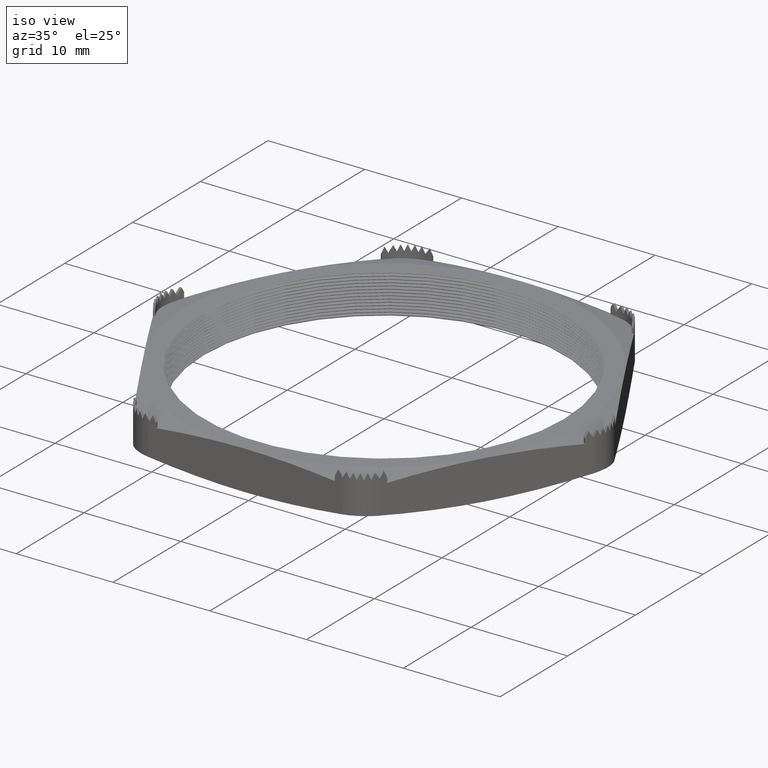
[diagram: clean part render]
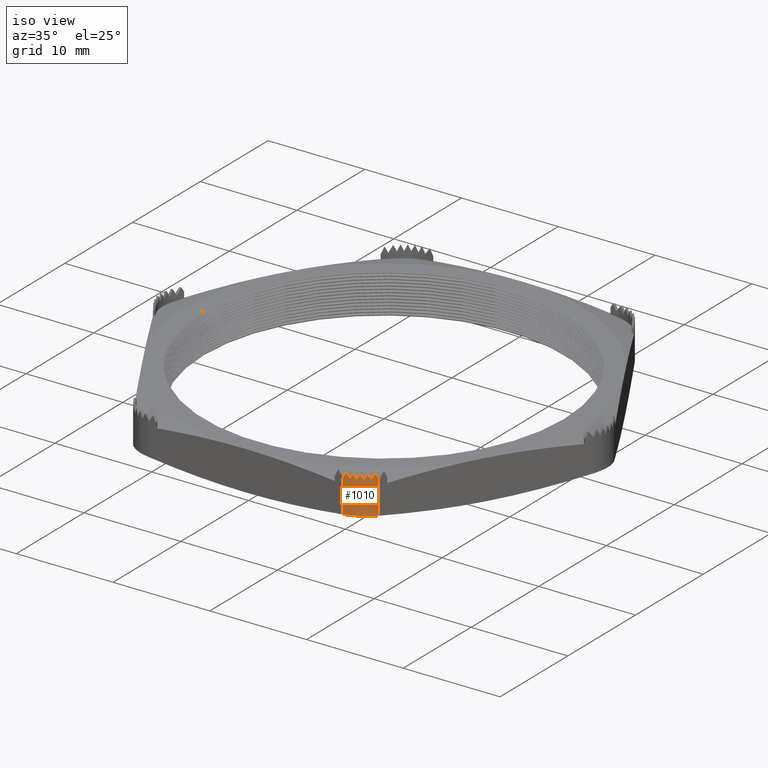
[diagram: same view with one face highlighted and labeled with its STEP entity id]
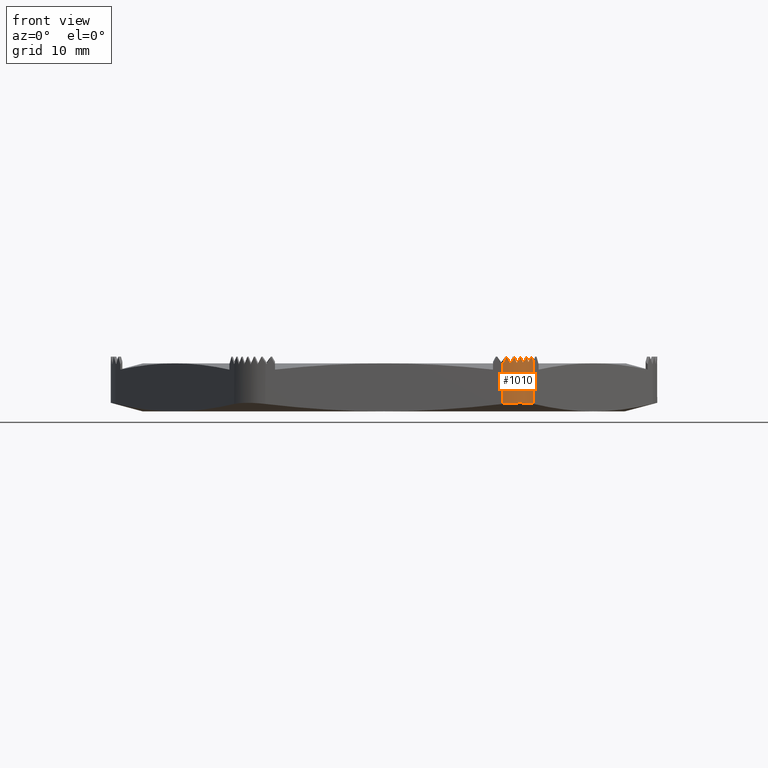
[diagram: same view with one face highlighted and labeled with its STEP entity id]
A machine part, iso view. The second image highlights one B-rep face of the part: STEP entity #1010.
A second angle (front view) of the same face is appended — the face is thin or edge-on in the first view.
In plain terms, the highlighted cylindrical surface (edge-blend (fillet) strip) has radius 3.048 mm, axis along (0, 0, -1).
Its self-contained STEP definition (entity closure, byte-faithful):
#822 = VERTEX_POINT ( 'NONE', #3536 ) ;
#824 = EDGE_CURVE ( 'NONE', #822, #831, #3535, .T. ) ;
#831 = VERTEX_POINT ( 'NONE', #3563 ) ;
#970 = ORIENTED_EDGE ( 'NONE', *, *, #971, .F. ) ;
#971 = EDGE_CURVE ( 'NONE', #972, #997, #3840, .T. ) ;
#972 = VERTEX_POINT ( 'NONE', #3841 ) ;
#973 = ORIENTED_EDGE ( 'NONE', *, *, #974, .F. ) ;
#974 = EDGE_CURVE ( 'NONE', #975, #972, #3835, .T. ) ;
#975 = VERTEX_POINT ( 'NONE', #3854 ) ;
#976 = ORIENTED_EDGE ( 'NONE', *, *, #977, .F. ) ;
#977 = EDGE_CURVE ( 'NONE', #978, #975, #3853, .T. ) ;
#978 = VERTEX_POINT ( 'NONE', #3852 ) ;
#979 = ORIENTED_EDGE ( 'NONE', *, *, #980, .F. ) ;
#980 = EDGE_CURVE ( 'NONE', #981, #978, #3846, .T. ) ;
#981 = VERTEX_POINT ( 'NONE', #3847 ) ;
#982 = ORIENTED_EDGE ( 'NONE', *, *, #983, .F. ) ;
#983 = EDGE_CURVE ( 'NONE', #984, #981, #3865, .T. ) ;
#984 = VERTEX_POINT ( 'NONE', #3866 ) ;
#985 = ORIENTED_EDGE ( 'NONE', *, *, #986, .F. ) ;
#986 = EDGE_CURVE ( 'NONE', #2252, #987, #3859, .T. ) ;
#987 = VERTEX_POINT ( 'NONE', #3860 ) ;
#988 = ORIENTED_EDGE ( 'NONE', *, *, #2309, .F. ) ;
#989 = ORIENTED_EDGE ( 'NONE', *, *, #990, .T. ) ;
#990 = EDGE_CURVE ( 'NONE', #2305, #831, #3887, .T. ) ;
#991 = ORIENTED_EDGE ( 'NONE', *, *, #824, .F. ) ;
#992 = ORIENTED_EDGE ( 'NONE', *, *, #993, .F. ) ;
#993 = EDGE_CURVE ( 'NONE', #994, #822, #3873, .T. ) ;
#994 = VERTEX_POINT ( 'NONE', #3886 ) ;
#995 = ORIENTED_EDGE ( 'NONE', *, *, #996, .F. ) ;
#996 = EDGE_CURVE ( 'NONE', #997, #994, #3867, .T. ) ;
#997 = VERTEX_POINT ( 'NONE', #3868 ) ;
#1010 = ADVANCED_FACE ( 'NONE', ( #3928 ), #3927, .T. ) ;
#1011 = EDGE_LOOP ( 'NONE', ( #985, #988, #989, #991, #992, #995, #970, #973, #976, #979, #982, #1046, #1049 ) ) ;
#1046 = ORIENTED_EDGE ( 'NONE', *, *, #1047, .F. ) ;
#1047 = EDGE_CURVE ( 'NONE', #1048, #984, #3992, .T. ) ;
#1048 = VERTEX_POINT ( 'NONE', #3991 ) ;
#1049 = ORIENTED_EDGE ( 'NONE', *, *, #1050, .F. ) ;
#1050 = EDGE_CURVE ( 'NONE', #987, #1048, #4013, .T. ) ;
#2252 = VERTEX_POINT ( 'NONE', #6351 ) ;
#2305 = VERTEX_POINT ( 'NONE', #6431 ) ;
#2309 = EDGE_CURVE ( 'NONE', #2305, #2252, #6429, .T. ) ;
#3532 = DIRECTION ( 'NONE',  ( 0.0000000000000000000, 0.0000000000000000000, -1.000000000000000000 ) ) ;
#3533 = VECTOR ( 'NONE', #3532, 39.37007874015748100 ) ;
#3534 = CARTESIAN_POINT ( 'NONE',  ( 0.4994079828490262700, -0.7449999999999998800, 0.1600000000000000000 ) ) ;
#3535 = LINE ( 'NONE', #3534, #3533 ) ;
#3536 = CARTESIAN_POINT ( 'NONE',  ( 0.4994079828490262700, -0.7449999999999998800, 0.1629545598920909000 ) ) ;
#3563 = CARTESIAN_POINT ( 'NONE',  ( 0.4994079828490262700, -0.7449999999999998800, 0.02462508695735180300 ) ) ;
#3831 = CARTESIAN_POINT ( 'NONE',  ( 0.4750572979125213300, -0.7748233764908584200, 0.1822000000000000000 ) ) ;
#3832 = CARTESIAN_POINT ( 'NONE',  ( 0.4720262471111105200, -0.7775085113146958900, 0.1738681777471867700 ) ) ;
#3833 = CARTESIAN_POINT ( 'NONE',  ( 0.4688632779317571400, -0.7800369187093568700, 0.1654610054953072300 ) ) ;
#3834 = CARTESIAN_POINT ( 'NONE',  ( 0.4655764854667094300, -0.7824021276376806900, 0.1570000000000000000 ) ) ;
#3835 =( BOUNDED_CURVE ( )  B_SPLINE_CURVE ( 3, ( #3834, #3833, #3832, #3831 ),
 .UNSPECIFIED., .F., .T. ) 
 B_SPLINE_CURVE_WITH_KNOTS ( ( 4, 4 ),
 ( 1.670963747956502900, 1.772154247585274700 ),
 .UNSPECIFIED. ) 
 CURVE ( )  GEOMETRIC_REPRESENTATION_ITEM ( )  RATIONAL_B_SPLINE_CURVE ( ( 1.000000000000000000, 0.9991468889104876400, 0.9991468889104876400, 1.000000000000000000 ) ) 
 REPRESENTATION_ITEM ( '' )  );
#3836 = CARTESIAN_POINT ( 'NONE',  ( 0.4838982010161547700, -0.7661362698511448000, 0.1570000000000000000 ) ) ;
#3837 = CARTESIAN_POINT ( 'NONE',  ( 0.4811022252660656100, -0.7691830126939291900, 0.1652839906436028300 ) ) ;
#3838 = CARTESIAN_POINT ( 'NONE',  ( 0.4781526334871084000, -0.7720812933364228400, 0.1736914702820993000 ) ) ;
#3839 = CARTESIAN_POINT ( 'NONE',  ( 0.4750572979125213300, -0.7748233764908584200, 0.1822000000000000000 ) ) ;
#3840 =( BOUNDED_CURVE ( )  B_SPLINE_CURVE ( 3, ( #3839, #3838, #3837, #3836 ),
 .UNSPECIFIED., .F., .T. ) 
 B_SPLINE_CURVE_WITH_KNOTS ( ( 4, 4 ),
 ( 4.913746901175066700, 5.017081634400135200 ),
 .UNSPECIFIED. ) 
 CURVE ( )  GEOMETRIC_REPRESENTATION_ITEM ( )  RATIONAL_B_SPLINE_CURVE ( ( 1.000000000000000000, 0.9991103590114891500, 0.9991103590114891500, 1.000000000000000000 ) ) 
 REPRESENTATION_ITEM ( '' )  );
#3841 = CARTESIAN_POINT ( 'NONE',  ( 0.4750572979125213300, -0.7748233764908584200, 0.1822000000000000000 ) ) ;
#3842 = CARTESIAN_POINT ( 'NONE',  ( 0.4554849343948992300, -0.7889230484541294200, 0.1822000000000000000 ) ) ;
#3843 = CARTESIAN_POINT ( 'NONE',  ( 0.4520135817143928800, -0.7909272348586720000, 0.1737824171009217100 ) ) ;
#3844 = CARTESIAN_POINT ( 'NONE',  ( 0.4484462467232077100, -0.7927551226115924200, 0.1653753892353865300 ) ) ;
#3845 = CARTESIAN_POINT ( 'NONE',  ( 0.4447918757758835300, -0.7944021276376818100, 0.1570000000000000000 ) ) ;
#3846 =( BOUNDED_CURVE ( )  B_SPLINE_CURVE ( 3, ( #3845, #3844, #3843, #3842 ),
 .UNSPECIFIED., .F., .T. ) 
 B_SPLINE_CURVE_WITH_KNOTS ( ( 4, 4 ),
 ( 1.470628905633383200, 1.570796326794942100 ),
 .UNSPECIFIED. ) 
 CURVE ( )  GEOMETRIC_REPRESENTATION_ITEM ( )  RATIONAL_B_SPLINE_CURVE ( ( 1.000000000000000000, 0.9991640487402216900, 0.9991640487402216900, 1.000000000000000000 ) ) 
 REPRESENTATION_ITEM ( '' )  );
#3847 = CARTESIAN_POINT ( 'NONE',  ( 0.4447918757758835300, -0.7944021276376818100, 0.1570000000000000000 ) ) ;
#3848 = CARTESIAN_POINT ( 'NONE',  ( 0.4655764854667094300, -0.7824021276376806900, 0.1570000000000000000 ) ) ;
#3849 = CARTESIAN_POINT ( 'NONE',  ( 0.4623229518002934800, -0.7847434031998709000, 0.1653753892353864700 ) ) ;
#3850 = CARTESIAN_POINT ( 'NONE',  ( 0.4589562870754053100, -0.7869188620495866100, 0.1737824171009217100 ) ) ;
#3851 = CARTESIAN_POINT ( 'NONE',  ( 0.4554849343948992300, -0.7889230484541294200, 0.1822000000000000000 ) ) ;
#3852 = CARTESIAN_POINT ( 'NONE',  ( 0.4554849343948992300, -0.7889230484541294200, 0.1822000000000000000 ) ) ;
#3853 =( BOUNDED_CURVE ( )  B_SPLINE_CURVE ( 3, ( #3851, #3850, #3849, #3848 ),
 .UNSPECIFIED., .F., .F. ) 
 B_SPLINE_CURVE_WITH_KNOTS ( ( 4, 4 ),
 ( 4.712388980384735900, 4.812556401546295600 ),
 .UNSPECIFIED. ) 
 CURVE ( )  GEOMETRIC_REPRESENTATION_ITEM ( )  RATIONAL_B_SPLINE_CURVE ( ( 1.000000000000000000, 0.9991640487402216900, 0.9991640487402216900, 1.000000000000000000 ) ) 
 REPRESENTATION_ITEM ( '' )  );
#3854 = CARTESIAN_POINT ( 'NONE',  ( 0.4655764854667094300, -0.7824021276376806900, 0.1570000000000000000 ) ) ;
#3855 = CARTESIAN_POINT ( 'NONE',  ( 0.4089066233527175500, -0.8042470471983245200, 0.1822000000000000000 ) ) ;
#3856 = CARTESIAN_POINT ( 'NONE',  ( 0.4044491434200072100, -0.8047487527801242500, 0.1735665983360783500 ) ) ;
#3857 = CARTESIAN_POINT ( 'NONE',  ( 0.3999705598631411700, -0.8049999999999994900, 0.1651577977754532200 ) ) ;
#3858 = CARTESIAN_POINT ( 'NONE',  ( 0.3954849343949009000, -0.8049999999999998300, 0.1570000000000000000 ) ) ;
#3859 =( BOUNDED_CURVE ( )  B_SPLINE_CURVE ( 3, ( #3858, #3857, #3856, #3855 ),
 .UNSPECIFIED., .F., .T. ) 
 B_SPLINE_CURVE_WITH_KNOTS ( ( 4, 4 ),
 ( 1.047197551196650700, 1.159279480727459600 ),
 .UNSPECIFIED. ) 
 CURVE ( )  GEOMETRIC_REPRESENTATION_ITEM ( )  RATIONAL_B_SPLINE_CURVE ( ( 1.000000000000000000, 0.9989534107080366700, 0.9989534107080366700, 1.000000000000000000 ) ) 
 REPRESENTATION_ITEM ( '' )  );
#3860 = CARTESIAN_POINT ( 'NONE',  ( 0.4089066233527175500, -0.8042470471983245200, 0.1822000000000000000 ) ) ;
#3861 = CARTESIAN_POINT ( 'NONE',  ( 0.4447918757758835300, -0.7944021276376818100, 0.1570000000000000000 ) ) ;
#3862 = CARTESIAN_POINT ( 'NONE',  ( 0.4411001485261736900, -0.7960659689452189700, 0.1654610054953071500 ) ) ;
#3863 = CARTESIAN_POINT ( 'NONE',  ( 0.4373289989016041500, -0.7975409769085960400, 0.1738681777471866900 ) ) ;
#3864 = CARTESIAN_POINT ( 'NONE',  ( 0.4334880785308695700, -0.7988233764908608800, 0.1822000000000000000 ) ) ;
#3865 =( BOUNDED_CURVE ( )  B_SPLINE_CURVE ( 3, ( #3864, #3863, #3862, #3861 ),
 .UNSPECIFIED., .F., .T. ) 
 B_SPLINE_CURVE_WITH_KNOTS ( ( 4, 4 ),
 ( 4.511031059594405900, 4.612221559223176100 ),
 .UNSPECIFIED. ) 
 CURVE ( )  GEOMETRIC_REPRESENTATION_ITEM ( )  RATIONAL_B_SPLINE_CURVE ( ( 1.000000000000000000, 0.9991468889104876400, 0.9991468889104876400, 1.000000000000000000 ) ) 
 REPRESENTATION_ITEM ( '' )  );
#3866 = CARTESIAN_POINT ( 'NONE',  ( 0.4334880785308695700, -0.7988233764908608800, 0.1822000000000000000 ) ) ;
#3867 =( BOUNDED_CURVE ( )  B_SPLINE_CURVE ( 3, ( #3898, #3897, #3896, #3895 ),
 .UNSPECIFIED., .F., .T. ) 
 B_SPLINE_CURVE_WITH_KNOTS ( ( 4, 4 ),
 ( 1.875488980810342300, 1.982313172862434400 ),
 .UNSPECIFIED. ) 
 CURVE ( )  GEOMETRIC_REPRESENTATION_ITEM ( )  RATIONAL_B_SPLINE_CURVE ( ( 1.000000000000000000, 0.9990492753879967000, 0.9990492753879967000, 1.000000000000000000 ) ) 
 REPRESENTATION_ITEM ( '' )  );
#3868 = CARTESIAN_POINT ( 'NONE',  ( 0.4838982010161547700, -0.7661362698511448000, 0.1570000000000000000 ) ) ;
#3869 = CARTESIAN_POINT ( 'NONE',  ( 0.4994079828490262700, -0.7449999999999998800, 0.1629545598920909000 ) ) ;
#3870 = CARTESIAN_POINT ( 'NONE',  ( 0.4971651701149072400, -0.7488846656073564500, 0.1691847348325639100 ) ) ;
#3871 = CARTESIAN_POINT ( 'NONE',  ( 0.4947082918614336100, -0.7526376091306344900, 0.1756066025932331000 ) ) ;
#3872 = CARTESIAN_POINT ( 'NONE',  ( 0.4920450621160209500, -0.7562470471983197000, 0.1822000000000000000 ) ) ;
#3873 =( BOUNDED_CURVE ( )  B_SPLINE_CURVE ( 3, ( #3872, #3871, #3870, #3869 ),
 .UNSPECIFIED., .F., .T. ) 
 B_SPLINE_CURVE_WITH_KNOTS ( ( 4, 4 ),
 ( 5.123905826452226400, 5.235987755982980800 ),
 .UNSPECIFIED. ) 
 CURVE ( )  GEOMETRIC_REPRESENTATION_ITEM ( )  RATIONAL_B_SPLINE_CURVE ( ( 1.000000000000000000, 0.9989534107080376700, 0.9989534107080376700, 1.000000000000000000 ) ) 
 REPRESENTATION_ITEM ( '' )  );
#3874 = CARTESIAN_POINT ( 'NONE',  ( 0.4994079828490262700, -0.7449999999999998800, 0.02462508695735180300 ) ) ;
#3875 = CARTESIAN_POINT ( 'NONE',  ( 0.4941490311525542100, -0.7541087715328398400, 0.02586778766318604400 ) ) ;
#3876 = CARTESIAN_POINT ( 'NONE',  ( 0.4877309871977069100, -0.7624564472086602400, 0.02680869568179129400 ) ) ;
#3877 = CARTESIAN_POINT ( 'NONE',  ( 0.4729804355958693900, -0.7772132461498726400, 0.02807100207968321300 ) ) ;
#3878 = CARTESIAN_POINT ( 'NONE',  ( 0.4644887195616436700, -0.7837297721107242500, 0.02839556056107385100 ) ) ;
#3879 = CARTESIAN_POINT ( 'NONE',  ( 0.4509174546304098900, -0.7915575350101186100, 0.02839402716008740000 ) ) ;
#3880 = CARTESIAN_POINT ( 'NONE',  ( 0.4462328969613104700, -0.7938676767199318600, 0.02831458339692249900 ) ) ;
#3881 = CARTESIAN_POINT ( 'NONE',  ( 0.4365376726559531700, -0.7978813510740677700, 0.02799514722478294000 ) ) ;
#3882 = CARTESIAN_POINT ( 'NONE',  ( 0.4314986057564831900, -0.7995881305187307900, 0.02775249487854722400 ) ) ;
#3883 = CARTESIAN_POINT ( 'NONE',  ( 0.4163198464148527600, -0.8036406471829696800, 0.02679957186085150200 ) ) ;
#3884 = CARTESIAN_POINT ( 'NONE',  ( 0.4060023645634663300, -0.8049999999999993800, 0.02586773175125778000 ) ) ;
#3885 = CARTESIAN_POINT ( 'NONE',  ( 0.3954849343948935200, -0.8049999999999997200, 0.02462508695735177200 ) ) ;
#3886 = CARTESIAN_POINT ( 'NONE',  ( 0.4920450621160209500, -0.7562470471983197000, 0.1822000000000000000 ) ) ;
#3887 = B_SPLINE_CURVE_WITH_KNOTS ( 'NONE', 3,
 ( #3885, #3884, #3883, #3882, #3881, #3880, #3879, #3878, #3877, #3876, #3875, #3874 ),
 .UNSPECIFIED., .F., .F.,
 ( 4, 2, 2, 2, 2, 4 ),
 ( 1.985672276032225400E-007, 0.0007958892643237659300, 0.001193734612871850000, 0.001591579961419933800, 0.002387270658516096200, 0.003182961355612258600 ),
 .UNSPECIFIED. ) ;
#3895 = CARTESIAN_POINT ( 'NONE',  ( 0.4920450621160209500, -0.7562470471983197000, 0.1822000000000000000 ) ) ;
#3896 = CARTESIAN_POINT ( 'NONE',  ( 0.4895068856858602600, -0.7596870022548827300, 0.1739719841282157400 ) ) ;
#3897 = CARTESIAN_POINT ( 'NONE',  ( 0.4867886810551953500, -0.7629865467639978000, 0.1655639904416804100 ) ) ;
#3898 = CARTESIAN_POINT ( 'NONE',  ( 0.4838982010161547700, -0.7661362698511448000, 0.1570000000000000000 ) ) ;
#3918 = DIRECTION ( 'NONE',  ( -1.000000000000000000, 0.0000000000000000000, 0.0000000000000000000 ) ) ;
#3919 = DIRECTION ( 'NONE',  ( 0.0000000000000000000, 0.0000000000000000000, -1.000000000000000000 ) ) ;
#3920 = CARTESIAN_POINT ( 'NONE',  ( 0.3954849343948935700, -0.6849999999999998300, 0.1600000000000000000 ) ) ;
#3921 = AXIS2_PLACEMENT_3D ( 'NONE', #3920, #3919, #3918 ) ;
#3927 = CYLINDRICAL_SURFACE ( 'NONE', #3921, 0.1200000000000000200 ) ;
#3928 = FACE_OUTER_BOUND ( 'NONE', #1011, .T. ) ;
#3987 = CARTESIAN_POINT ( 'NONE',  ( 0.4334880785308695700, -0.7988233764908608800, 0.1822000000000000000 ) ) ;
#3988 = CARTESIAN_POINT ( 'NONE',  ( 0.4295656970725455500, -0.8001329741544734900, 0.1736914702820993900 ) ) ;
#3989 = CARTESIAN_POINT ( 'NONE',  ( 0.4255809165193710800, -0.8012382552445976900, 0.1652839906436028800 ) ) ;
#3990 = CARTESIAN_POINT ( 'NONE',  ( 0.4215443719436771100, -0.8021362698511483900, 0.1570000000000000000 ) ) ;
#3991 = CARTESIAN_POINT ( 'NONE',  ( 0.4215443719436771100, -0.8021362698511483900, 0.1570000000000000000 ) ) ;
#3992 =( BOUNDED_CURVE ( )  B_SPLINE_CURVE ( 3, ( #3990, #3989, #3988, #3987 ),
 .UNSPECIFIED., .F., .T. ) 
 B_SPLINE_CURVE_WITH_KNOTS ( ( 4, 4 ),
 ( 1.266103672779547200, 1.369438406004613000 ),
 .UNSPECIFIED. ) 
 CURVE ( )  GEOMETRIC_REPRESENTATION_ITEM ( )  RATIONAL_B_SPLINE_CURVE ( ( 1.000000000000000000, 0.9991103590114891500, 0.9991103590114891500, 1.000000000000000000 ) ) 
 REPRESENTATION_ITEM ( '' )  );
#4009 = CARTESIAN_POINT ( 'NONE',  ( 0.4215443719436771100, -0.8021362698511483900, 0.1570000000000000000 ) ) ;
#4010 = CARTESIAN_POINT ( 'NONE',  ( 0.4173713917158013400, -0.8030646374505162600, 0.1655639904416803000 ) ) ;
#4011 = CARTESIAN_POINT ( 'NONE',  ( 0.4131548000346582100, -0.8037688994587993700, 0.1739719841282156300 ) ) ;
#4012 = CARTESIAN_POINT ( 'NONE',  ( 0.4089066233527175500, -0.8042470471983245200, 0.1822000000000000000 ) ) ;
#4013 =( BOUNDED_CURVE ( )  B_SPLINE_CURVE ( 3, ( #4012, #4011, #4010, #4009 ),
 .UNSPECIFIED., .F., .F. ) 
 B_SPLINE_CURVE_WITH_KNOTS ( ( 4, 4 ),
 ( 4.300872134317252500, 4.407696326369340100 ),
 .UNSPECIFIED. ) 
 CURVE ( )  GEOMETRIC_REPRESENTATION_ITEM ( )  RATIONAL_B_SPLINE_CURVE ( ( 1.000000000000000000, 0.9990492753879968200, 0.9990492753879968200, 1.000000000000000000 ) ) 
 REPRESENTATION_ITEM ( '' )  );
#6351 = CARTESIAN_POINT ( 'NONE',  ( 0.3954849343949009000, -0.8049999999999998300, 0.1570000000000000000 ) ) ;
#6428 = CARTESIAN_POINT ( 'NONE',  ( 0.3954849343948935200, -0.8049999999999997200, 0.1600000000000000000 ) ) ;
#6429 = LINE ( 'NONE', #6428, #6472 ) ;
#6431 = CARTESIAN_POINT ( 'NONE',  ( 0.3954849343948935200, -0.8049999999999997200, 0.02462508695735177200 ) ) ;
#6471 = DIRECTION ( 'NONE',  ( 0.0000000000000000000, 0.0000000000000000000, 1.000000000000000000 ) ) ;
#6472 = VECTOR ( 'NONE', #6471, 39.37007874015748100 ) ;